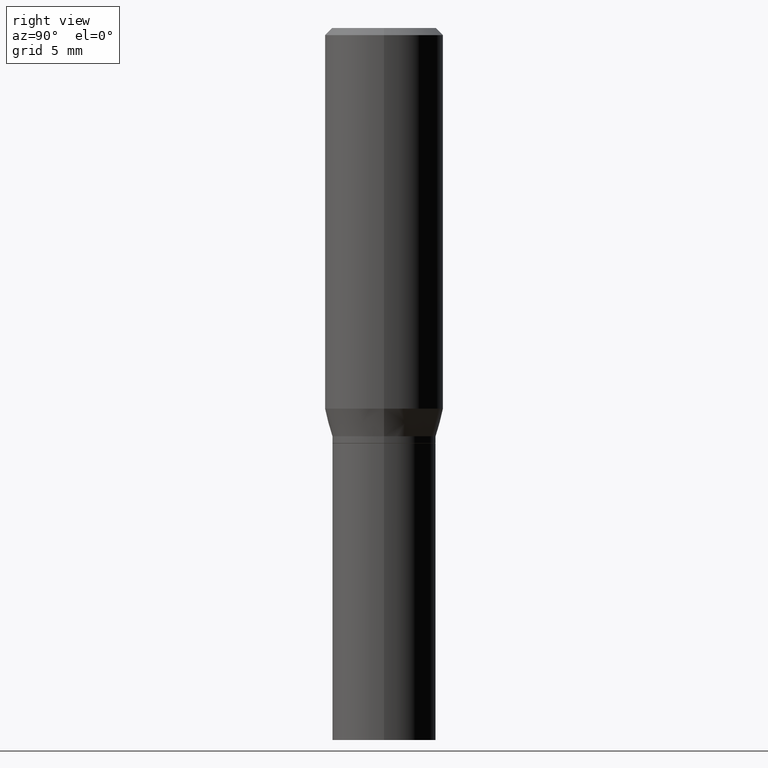
[diagram: clean part render]
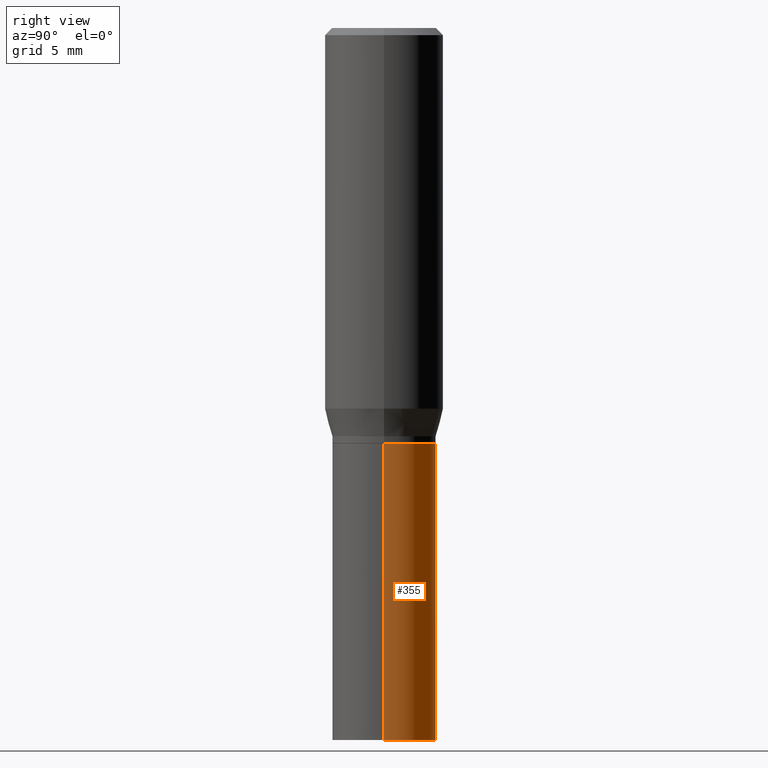
[diagram: same view with one face highlighted and labeled with its STEP entity id]
A machine part, right view. The second image highlights one B-rep face of the part: STEP entity #355.
In plain terms, the highlighted cylindrical surface (partial cylindrical patch) has radius 2.7788 mm, axis along (-0, 0, 1).
Its self-contained STEP definition (entity closure, byte-faithful):
#14 = CIRCLE ( 'NONE', #89, 0.1093999999999999972 ) ;
#19 = VECTOR ( 'NONE', #374, 39.37007874015748143 ) ;
#49 = VERTEX_POINT ( 'NONE', #179 ) ;
#56 = LINE ( 'NONE', #335, #433 ) ;
#64 = CARTESIAN_POINT ( 'NONE',  ( 0.1093999999999999972, -3.818982288426630302E-15, -0.8750000000000001110 ) ) ;
#68 = DIRECTION ( 'NONE',  ( -2.445468806185136597E-29, 3.491481338843145583E-15, 1.000000000000000000 ) ) ;
#86 = DIRECTION ( 'NONE',  ( 1.000000000000000000, -6.982962677686269866E-15, 0.000000000000000000 ) ) ;
#89 = AXIS2_PLACEMENT_3D ( 'NONE', #405, #191, #86 ) ;
#97 = ORIENTED_EDGE ( 'NONE', *, *, #185, .F. ) ;
#107 = CIRCLE ( 'NONE', #409, 0.1093999999999999972 ) ;
#121 = DIRECTION ( 'NONE',  ( -2.445468806185136877E-29, 3.491481338843145188E-15, 1.000000000000000000 ) ) ;
#122 = VERTEX_POINT ( 'NONE', #271 ) ;
#128 = LINE ( 'NONE', #266, #19 ) ;
#129 = DIRECTION ( 'NONE',  ( -2.445468806185136597E-29, 3.491481338843145583E-15, 1.000000000000000000 ) ) ;
#135 = VERTEX_POINT ( 'NONE', #444 ) ;
#138 = VERTEX_POINT ( 'NONE', #64 ) ;
#179 = CARTESIAN_POINT ( 'NONE',  ( -0.1093999999999999972, -3.368800336954685870E-15, -1.500000000000000222 ) ) ;
#185 = EDGE_CURVE ( 'NONE', #138, #135, #14, .T. ) ;
#189 = EDGE_LOOP ( 'NONE', ( #352, #253, #97, #410 ) ) ;
#191 = DIRECTION ( 'NONE',  ( -2.445468806185136597E-29, 3.491481338843145583E-15, 1.000000000000000000 ) ) ;
#205 = EDGE_CURVE ( 'NONE', #49, #135, #128, .T. ) ;
#208 = EDGE_CURVE ( 'NONE', #122, #138, #56, .T. ) ;
#253 = ORIENTED_EDGE ( 'NONE', *, *, #205, .T. ) ;
#266 = CARTESIAN_POINT ( 'NONE',  ( -0.1093999999999999972, 7.773337529215495838E-16, -5.381314988738867416E-30 ) ) ;
#269 = DIRECTION ( 'NONE',  ( 1.000000000000000000, -6.982962677686269866E-15, 0.000000000000000000 ) ) ;
#271 = CARTESIAN_POINT ( 'NONE',  ( 0.1093999999999999972, -6.001158125203596537E-15, -1.500000000000000222 ) ) ;
#281 = FACE_OUTER_BOUND ( 'NONE', #189, .T. ) ;
#293 = EDGE_CURVE ( 'NONE', #122, #49, #107, .T. ) ;
#317 = DIRECTION ( 'NONE',  ( 1.000000000000000000, -6.982962677686266711E-15, 4.876176775795935793E-29 ) ) ;
#335 = CARTESIAN_POINT ( 'NONE',  ( 0.1093999999999999972, -7.639361169388775718E-16, 5.334537392720753909E-30 ) ) ;
#346 = CARTESIAN_POINT ( 'NONE',  ( 3.668203209277704895E-29, -5.237222008264718177E-15, -1.500000000000000222 ) ) ;
#352 = ORIENTED_EDGE ( 'NONE', *, *, #293, .T. ) ;
#355 = ADVANCED_FACE ( 'NONE', ( #281 ), #386, .T. ) ;
#374 = DIRECTION ( 'NONE',  ( -2.445468806185136877E-29, 3.491481338843145188E-15, 1.000000000000000000 ) ) ;
#386 = CYLINDRICAL_SURFACE ( 'NONE', #416, 0.1093999999999999972 ) ;
#405 = CARTESIAN_POINT ( 'NONE',  ( 2.139785205411994522E-29, -3.055046171487752730E-15, -0.8750000000000001110 ) ) ;
#409 = AXIS2_PLACEMENT_3D ( 'NONE', #346, #129, #269 ) ;
#410 = ORIENTED_EDGE ( 'NONE', *, *, #208, .F. ) ;
#416 = AXIS2_PLACEMENT_3D ( 'NONE', #453, #68, #317 ) ;
#433 = VECTOR ( 'NONE', #121, 39.37007874015748143 ) ;
#444 = CARTESIAN_POINT ( 'NONE',  ( -0.1093999999999999972, -3.368800336954685870E-15, -0.8750000000000001110 ) ) ;
#453 = CARTESIAN_POINT ( 'NONE',  ( 0.000000000000000000, 0.000000000000000000, 0.000000000000000000 ) ) ;